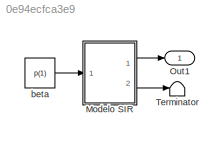
MODEL slx_0e94ecfca3e9
KIND model
WORKSPACE source: MAT-file member
WORKSPACE p = [0.491750110413 0.154394214776]
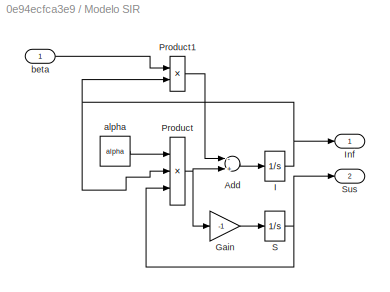
BLOCK [SubSystem] Modelo SIR
  FunctionWithSeparateData = off
  MaskHideContents = off
  MinAlgLoopOccurrences = off
  Opaque = off
  Ports = [1, 2]
  PropExecContextOutsideSubsystem = off
  RTWSystemCode = Auto
  RequestExecContextInheritance = off
BLOCK [Sum] Modelo SIR/Add
  InputSameDT = off
  Inputs = -+
  OutDataTypeStr = Inherit: Inherit via internal rule
  Ports = [2, 1]
  SaturateOnIntegerOverflow = off
BLOCK [Gain] Modelo SIR/Gain
  Gain = -1
  OutDataTypeStr = Inherit: Inherit via internal rule
  ParamDataTypeStr = Inherit: Inherit via internal rule
  SaturateOnIntegerOverflow = off
BLOCK [Integrator] Modelo SIR/I
  InitialCondition = I0
  Ports = [1, 1]
BLOCK [Outport] Modelo SIR/Inf
  IconDisplay = Port number
BLOCK [Product] Modelo SIR/Product
  InputSameDT = off
  Inputs = 3
  OutDataTypeStr = Inherit: Inherit via internal rule
  Ports = [3, 1]
  RndMeth = Floor
  SaturateOnIntegerOverflow = off
BLOCK [Product] Modelo SIR/Product1
  InputSameDT = off
  OutDataTypeStr = Inherit: Inherit via internal rule
  Ports = [2, 1]
  RndMeth = Floor
  SaturateOnIntegerOverflow = off
BLOCK [Integrator] Modelo SIR/S
  InitialCondition = S0
  Ports = [1, 1]
BLOCK [Outport] Modelo SIR/Sus
  IconDisplay = Port number
  Port = 2
BLOCK [Constant] Modelo SIR/alpha
  Value = alpha
BLOCK [Inport] Modelo SIR/beta
  IconDisplay = Port number
BLOCK [Outport] Out1
  IconDisplay = Port number
BLOCK [Terminator] Terminator
BLOCK [Constant] beta
  Value = p(1)
LINE Modelo SIR/Add:1 -> Modelo SIR/I:1
LINE Modelo SIR/Gain:1 -> Modelo SIR/S:1
NET Modelo SIR/I:1 -> Modelo SIR/Inf:1, Modelo SIR/Product1:2, Modelo SIR/Product:2
LINE Modelo SIR/Product1:1 -> Modelo SIR/Add:1
NET Modelo SIR/Product:1 -> Modelo SIR/Add:2, Modelo SIR/Gain:1
NET Modelo SIR/S:1 -> Modelo SIR/Product:3, Modelo SIR/Sus:1
LINE Modelo SIR/alpha:1 -> Modelo SIR/Product:1
LINE Modelo SIR/beta:1 -> Modelo SIR/Product1:1
LINE Modelo SIR:1 -> Out1:1
LINE Modelo SIR:2 -> Terminator:1
LINE beta:1 -> Modelo SIR:1
note: NET lines group one-source signal fan-out (src -> all destinations, sorted); 1:1 wires keep LINE
